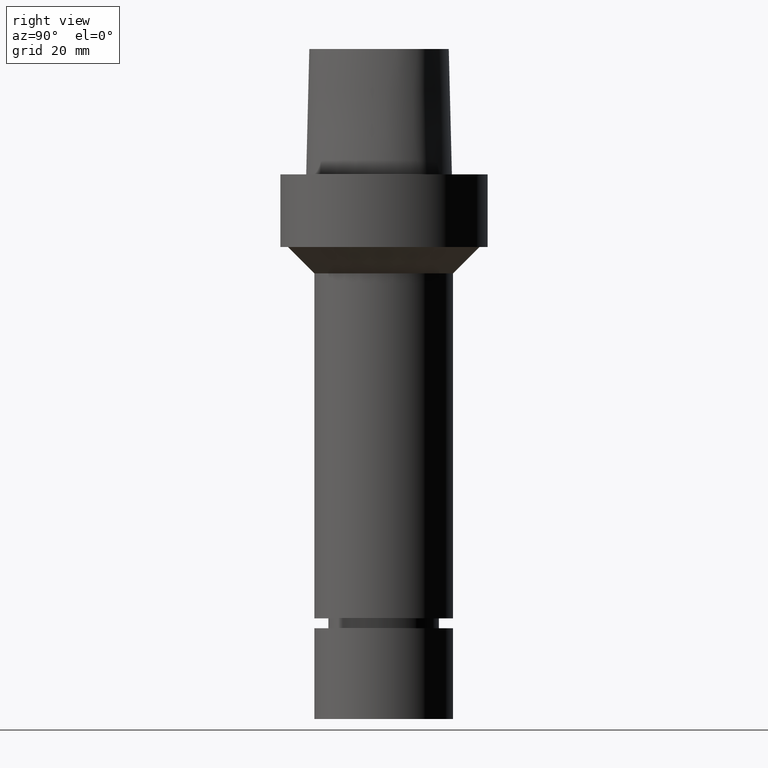
[diagram: clean part render]
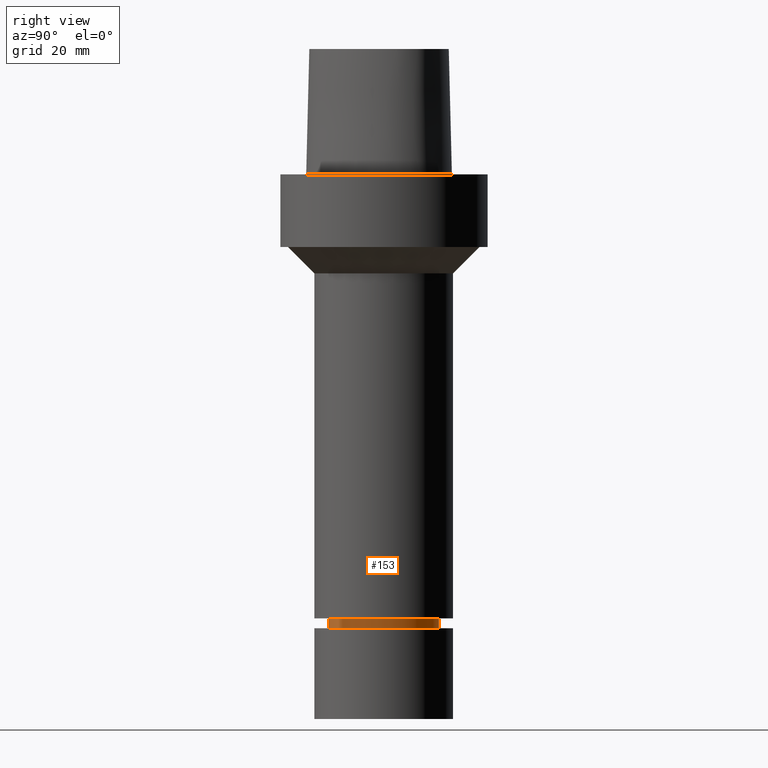
[diagram: same view with one face highlighted and labeled with its STEP entity id]
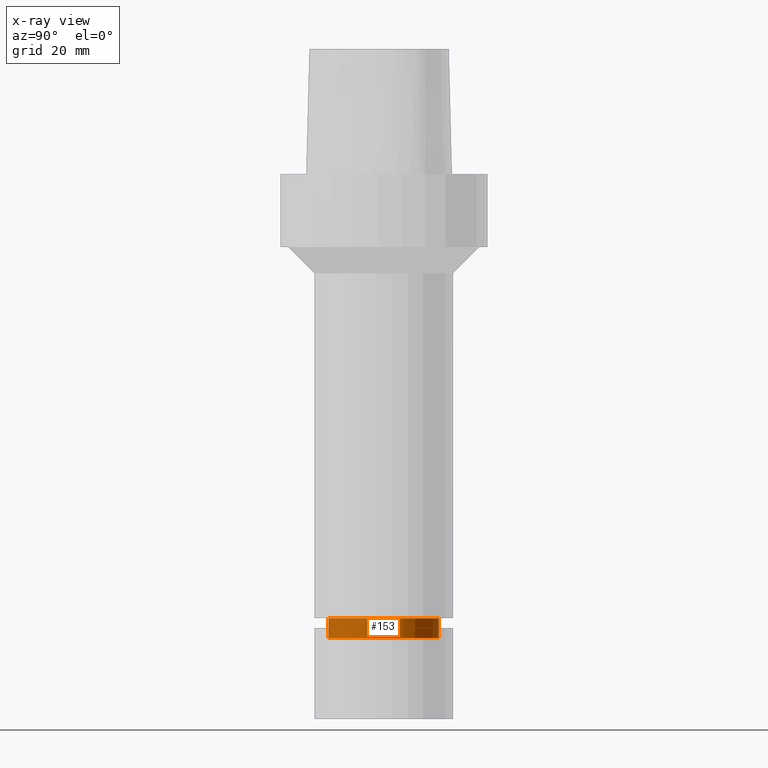
[diagram: x-ray of the same camera — body ghosted, the highlighted face saturated]
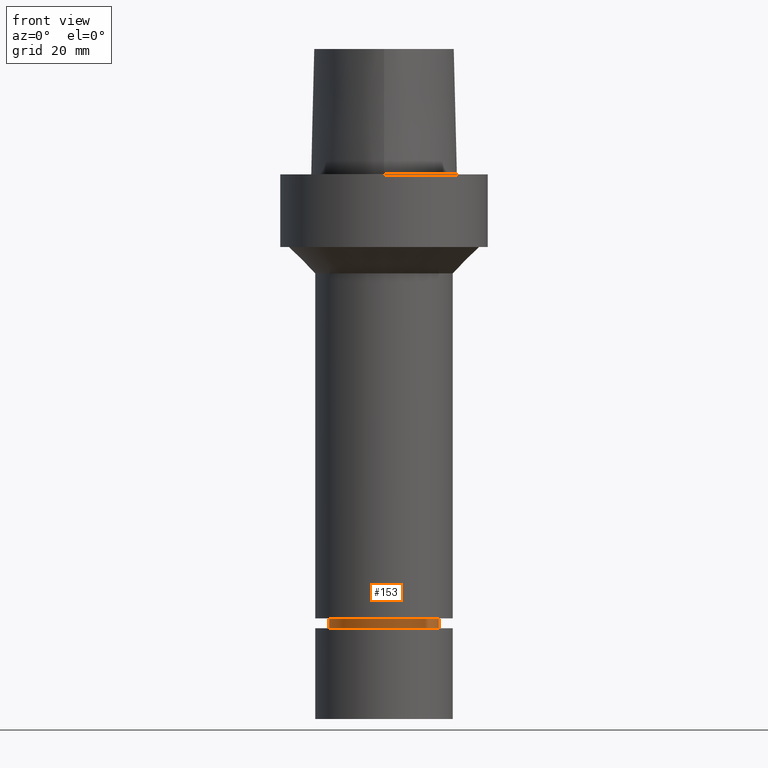
[diagram: same view with one face highlighted and labeled with its STEP entity id]
A machine part, right view. The second image highlights one B-rep face of the part: STEP entity #153.
The next image is the same camera in x-ray: the body ghosted, the highlighted face saturated — about 0% of this face is hidden behind the body in this view.
A second angle (front view) of the same face is appended — the face is thin or edge-on in the first view.
In plain terms, the highlighted cylindrical surface (bore or boss wall) has radius 16.75 mm, axis along (0, 0, -1).
Its self-contained STEP definition (entity closure, byte-faithful):
#73=EDGE_CURVE('Unnamed[1]',#192,#192,#193,.T.);
#95=EDGE_CURVE('Unnamed[1]',#227,#227,#228,.T.);
#153=ADVANCED_FACE('Unnamed[1]',(#309,#310),#311,.T.);
#192=VERTEX_POINT('',#350);
#193=CIRCLE('',#351,16.7500000000017);
#227=VERTEX_POINT('',#511);
#228=CIRCLE('',#512,16.7499999999907);
#309=FACE_BOUND('',#697,.T.);
#310=FACE_BOUND('',#698,.T.);
#311=CYLINDRICAL_SURFACE('',#699,16.7499999999962);
#350=CARTESIAN_POINT('',(8.60114298906023E-015,16.7500000000017,-140.467324865401));
#351=AXIS2_PLACEMENT_3D('',#764,#765,#766);
#511=CARTESIAN_POINT('',(8.2357497242659E-015,16.7499999999907,-134.499999999999));
#512=AXIS2_PLACEMENT_3D('',#797,#798,#799);
#697=EDGE_LOOP('',(#885));
#698=EDGE_LOOP('',(#886));
#699=AXIS2_PLACEMENT_3D('',#887,#888,#889);
#764=CARTESIAN_POINT('',(8.60114298906023E-015,1.72022859781205E-014,-140.467324865401));
#765=DIRECTION('',(6.12323399573676E-017,1.22464679914735E-016,-1.0));
#766=DIRECTION('',(-1.23259516440783E-032,1.0,1.22464679914735E-016));
#797=CARTESIAN_POINT('',(8.2357497242659E-015,1.64714994485318E-014,-134.499999999999));
#798=DIRECTION('',(6.12323399573677E-017,1.22464679914735E-016,-1.0));
#799=DIRECTION('',(-1.23259516440783E-032,1.0,1.22464679914735E-016));
#885=ORIENTED_EDGE('',*,*,#73,.F.);
#886=ORIENTED_EDGE('',*,*,#95,.T.);
#887=CARTESIAN_POINT('',(8.41844635666307E-015,1.68368927133261E-014,-137.4836624327));
#888=DIRECTION('',(6.12323399573677E-017,1.22464679914735E-016,-1.0));
#889=DIRECTION('',(-1.23259516440783E-032,1.0,1.22464679914735E-016));